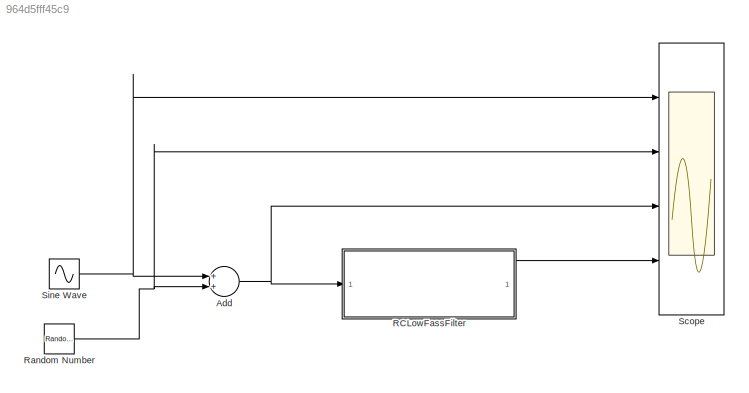
MODEL slx_964d5fff45c9
KIND model
CONFIG AbsTol = auto
CONFIG EnableMultiTasking = off
CONFIG FixedStep = 0.02
CONFIG MaxStep = auto
CONFIG MinStep = auto
CONFIG RelTol = 1e-3
CONFIG SampleTimeConstraint = Unconstrained
CONFIG Solver = FixedStepAuto
CONFIG SolverName = FixedStepAuto
CONFIG StartTime = 0.0
CONFIG StopTime = 10.0
BLOCK [Sum] Add
  InputSameDT = off
  OutDataTypeStr = Inherit: Inherit via internal rule
  Ports = [2, 1]
  SaturateOnIntegerOverflow = off
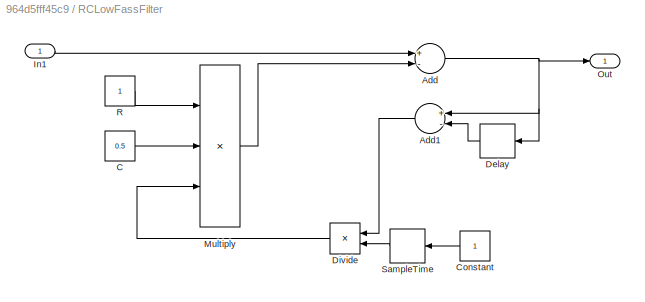
BLOCK [SubSystem] RCLowFassFilter
  Ports = [1, 1]
  RequestExecContextInheritance = off
BLOCK [Sum] RCLowFassFilter/Add
  InputSameDT = off
  Inputs = +-
  OutDataTypeStr = Inherit: Inherit via internal rule
  Ports = [2, 1]
  SaturateOnIntegerOverflow = off
BLOCK [Sum] RCLowFassFilter/Add1
  InputSameDT = off
  Inputs = +-
  OutDataTypeStr = Inherit: Inherit via internal rule
  Ports = [2, 1]
  SaturateOnIntegerOverflow = off
BLOCK [Constant] RCLowFassFilter/C
  Value = 0.5
BLOCK [Constant] RCLowFassFilter/Constant
BLOCK [Delay] RCLowFassFilter/Delay
  DelayLength = 1
  InitialCondition = 0
  InputPortMap = u0
  Ports = [1, 1]
BLOCK [Product] RCLowFassFilter/Divide
  InputSameDT = off
  Inputs = */
  OutDataTypeStr = Inherit: Inherit via internal rule
  Ports = [2, 1]
  RndMeth = Floor
  SaturateOnIntegerOverflow = off
BLOCK [Inport] RCLowFassFilter/In1
  IconDisplay = Port number
BLOCK [Product] RCLowFassFilter/Multiply
  InputSameDT = off
  Inputs = 3
  OutDataTypeStr = Inherit: Inherit via internal rule
  Ports = [3, 1]
  RndMeth = Floor
  SaturateOnIntegerOverflow = off
BLOCK [Outport] RCLowFassFilter/Out
  IconDisplay = Port number
BLOCK [Constant] RCLowFassFilter/R
BLOCK [SampleTimeMath] RCLowFassFilter/SampleTime
  TsampMathOp = Ts Only
BLOCK [RandomNumber] Random Number
BLOCK [Scope] Scope
  Floating = off
  NumInputPorts = 4
  Ports = [4]
  ScopeSpecificationString = Simulink.scopes.TimeScopeBlockCfg('CurrentConfiguration', extmgr.ConfigurationSet(extmgr.Configuration('Core','General UI',true),extmgr.Configuration('Core','Source UI',true),extmgr.Configuration('Sources','WiredSimulink',true),extmgr.Configuration('Visuals','Time Domain',true,'SerializedDisplays',{struct('MinYLimReal','-3.7499','MaxYLimReal','3.74993','YLabelReal','','MinYLimMag','0.00000','MaxYL...<+3968ch>
BLOCK [Sin] Sine Wave
  Amplitude = 3
  Ports = [0, 1]
  SampleTime = 0
NET Add:1 -> RCLowFassFilter:1, Scope:3
LINE RCLowFassFilter/Add1:1 -> RCLowFassFilter/Divide:1
NET RCLowFassFilter/Add:1 -> RCLowFassFilter/Add1:1, RCLowFassFilter/Delay:1, RCLowFassFilter/Out:1
LINE RCLowFassFilter/C:1 -> RCLowFassFilter/Multiply:2
LINE RCLowFassFilter/Constant:1 -> RCLowFassFilter/SampleTime:1
LINE RCLowFassFilter/Delay:1 -> RCLowFassFilter/Add1:2
LINE RCLowFassFilter/Divide:1 -> RCLowFassFilter/Multiply:3
LINE RCLowFassFilter/In1:1 -> RCLowFassFilter/Add:1
LINE RCLowFassFilter/Multiply:1 -> RCLowFassFilter/Add:2
LINE RCLowFassFilter/R:1 -> RCLowFassFilter/Multiply:1
LINE RCLowFassFilter/SampleTime:1 -> RCLowFassFilter/Divide:2
LINE RCLowFassFilter:1 -> Scope:4
NET Random Number:1 -> Add:2, Scope:2
NET Sine Wave:1 -> Add:1, Scope:1
note: NET lines group one-source signal fan-out (src -> all destinations, sorted); 1:1 wires keep LINE
